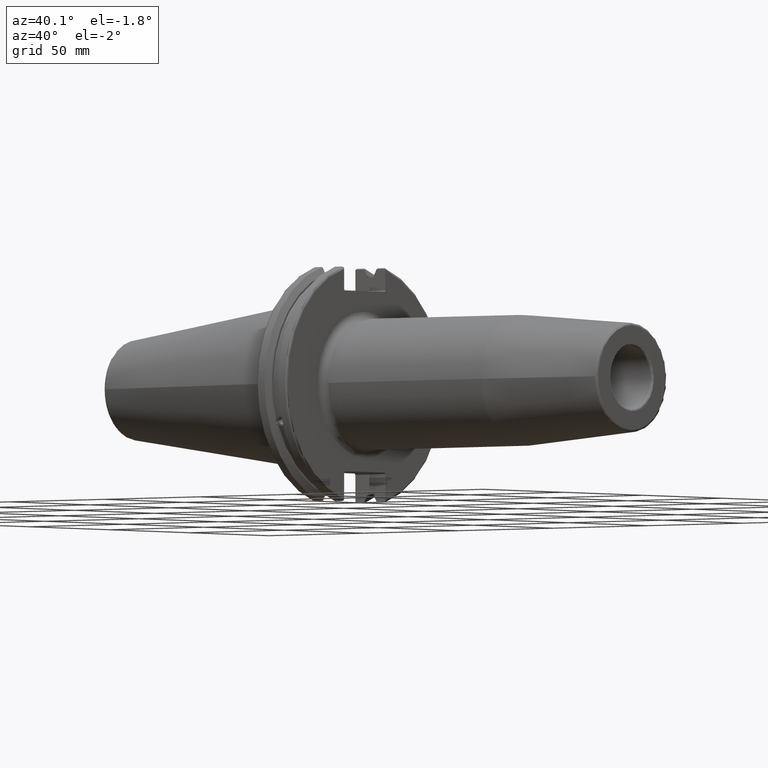
[diagram: clean part render]
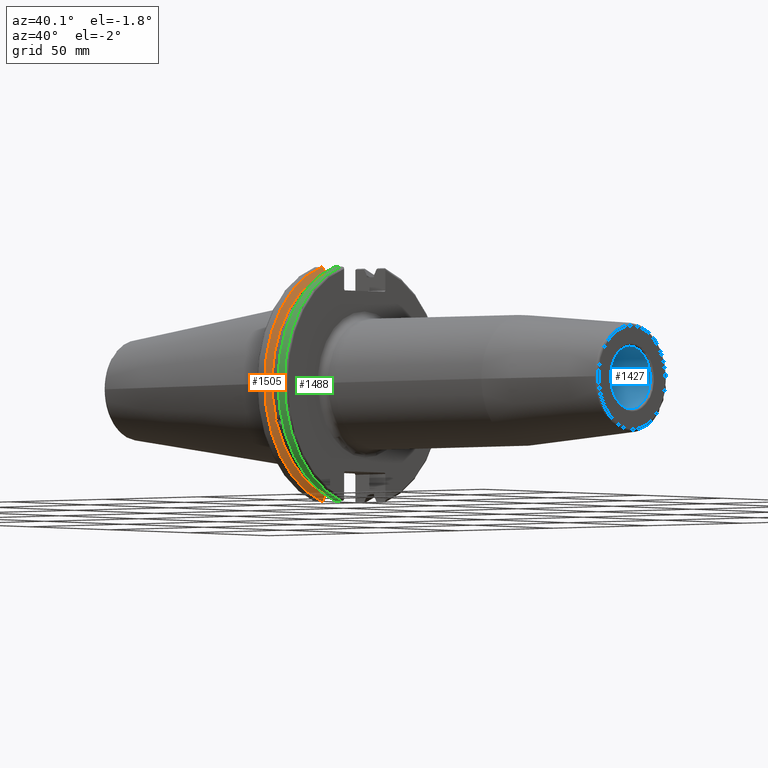
[diagram: same view with three faces highlighted in distinct colors, each labeled with its STEP entity id]
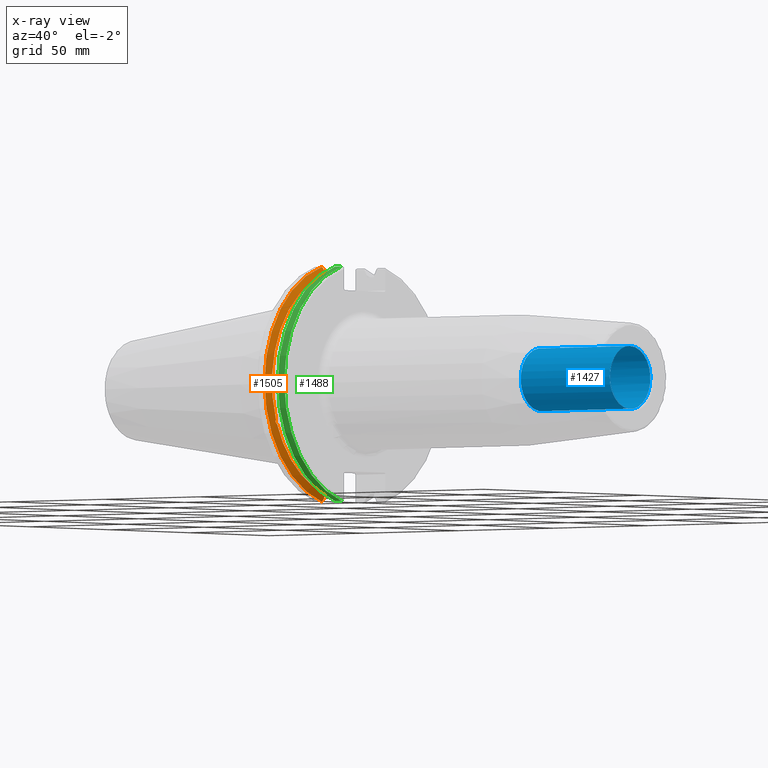
[diagram: x-ray of the same camera — body ghosted, the three highlighted faces saturated]
A machine part, auxiliary view with three faces highlighted in distinct colors.
The next image is the same camera in x-ray (body ghosted, the three faces saturated) — at least one of them is partly hidden behind the body in this view.
Their STEP definitions:

[orange] entity #1505 — the highlighted conical surface has half-angle 60 deg.
#25=(
BOUNDED_CURVE()
B_SPLINE_CURVE(2,(#2853,#2854,#2855),.UNSPECIFIED.,.F.,.F.)
B_SPLINE_CURVE_WITH_KNOTS((3,3),(0.,0.275823910674601),.UNSPECIFIED.)
CURVE()
GEOMETRIC_REPRESENTATION_ITEM()
RATIONAL_B_SPLINE_CURVE((1.,1.00038235573593,1.00012873636487))
REPRESENTATION_ITEM('')
);
#26=(
BOUNDED_CURVE()
B_SPLINE_CURVE(2,(#2865,#2866,#2867),.UNSPECIFIED.,.F.,.F.)
B_SPLINE_CURVE_WITH_KNOTS((3,3),(0.0558332664507492,0.331657177124507),
 .UNSPECIFIED.)
CURVE()
GEOMETRIC_REPRESENTATION_ITEM()
RATIONAL_B_SPLINE_CURVE((1.00012873636807,1.00038235574544,1.))
REPRESENTATION_ITEM('')
);
#27=(
BOUNDED_CURVE()
B_SPLINE_CURVE(2,(#2900,#2901,#2902),.UNSPECIFIED.,.F.,.F.)
B_SPLINE_CURVE_WITH_KNOTS((3,3),(0.,0.0648240472897372),.UNSPECIFIED.)
CURVE()
GEOMETRIC_REPRESENTATION_ITEM()
RATIONAL_B_SPLINE_CURVE((1.,1.00011477674836,1.00019140645948))
REPRESENTATION_ITEM('')
);
#28=(
BOUNDED_CURVE()
B_SPLINE_CURVE(2,(#2908,#2909,#2910),.UNSPECIFIED.,.F.,.F.)
B_SPLINE_CURVE_WITH_KNOTS((3,3),(0.325260944932348,0.390084992222201),
 .UNSPECIFIED.)
CURVE()
GEOMETRIC_REPRESENTATION_ITEM()
RATIONAL_B_SPLINE_CURVE((1.00019140645916,1.00011477674817,1.))
REPRESENTATION_ITEM('')
);
#43=B_SPLINE_CURVE_WITH_KNOTS('',3,(#2397,#2398,#2399,#2400,#2401,#2402,
#2403,#2404,#2405,#2406,#2407,#2408,#2409,#2410),.UNSPECIFIED.,.F.,.F.,
(4,2,2,2,2,2,4),(0.426712868358719,0.441644498666906,0.48031331322313,0.518982127779354,
0.557650942335578,0.596319756891801,0.611251387199988),.UNSPECIFIED.);
#82=CONICAL_SURFACE('',#1685,47.8172386482472,1.0471975511966);
#426=FACE_OUTER_BOUND('',#530,.T.);
#530=EDGE_LOOP('',(#1396,#1397,#1398,#1399,#1400,#1401,#1402,#1403));
#567=CIRCLE('',#1592,46.4219772964944);
#589=CIRCLE('',#1639,49.2125);
#605=CIRCLE('',#1686,46.4219772964944);
#652=VERTEX_POINT('',#2394);
#653=VERTEX_POINT('',#2396);
#670=VERTEX_POINT('',#2487);
#728=VERTEX_POINT('',#2850);
#729=VERTEX_POINT('',#2852);
#732=VERTEX_POINT('',#2864);
#736=VERTEX_POINT('',#2898);
#737=VERTEX_POINT('',#2904);
#813=EDGE_CURVE('',#653,#652,#43,.T.);
#836=EDGE_CURVE('',#653,#670,#567,.T.);
#914=EDGE_CURVE('',#729,#728,#25,.T.);
#920=EDGE_CURVE('',#732,#670,#26,.T.);
#928=EDGE_CURVE('',#736,#728,#27,.T.);
#930=EDGE_CURVE('',#736,#737,#589,.T.);
#931=EDGE_CURVE('',#732,#737,#28,.T.);
#973=EDGE_CURVE('',#729,#652,#605,.T.);
#1396=ORIENTED_EDGE('',*,*,#813,.T.);
#1397=ORIENTED_EDGE('',*,*,#973,.F.);
#1398=ORIENTED_EDGE('',*,*,#914,.T.);
#1399=ORIENTED_EDGE('',*,*,#928,.F.);
#1400=ORIENTED_EDGE('',*,*,#930,.T.);
#1401=ORIENTED_EDGE('',*,*,#931,.F.);
#1402=ORIENTED_EDGE('',*,*,#920,.T.);
#1403=ORIENTED_EDGE('',*,*,#836,.F.);
#1505=ADVANCED_FACE('',(#426),#82,.T.);
#1592=AXIS2_PLACEMENT_3D('',#2488,#1843,#1844);
#1639=AXIS2_PLACEMENT_3D('',#2906,#1977,#1978);
#1685=AXIS2_PLACEMENT_3D('',#3022,#2090,#2091);
#1686=AXIS2_PLACEMENT_3D('',#3023,#2092,#2093);
#1843=DIRECTION('center_axis',(1.,0.,0.));
#1844=DIRECTION('ref_axis',(0.,0.,-1.));
#1977=DIRECTION('center_axis',(1.,0.,0.));
#1978=DIRECTION('ref_axis',(0.,0.,-1.));
#2090=DIRECTION('center_axis',(-1.,0.,0.));
#2091=DIRECTION('ref_axis',(0.,-1.,-1.22464679914735E-16));
#2092=DIRECTION('center_axis',(1.,0.,0.));
#2093=DIRECTION('ref_axis',(0.,0.,-1.));
#2394=CARTESIAN_POINT('',(9.2191,-43.9096390749305,-15.0646464421033));
#2396=CARTESIAN_POINT('',(9.2191,-43.3201030900029,-16.684383248648));
#2397=CARTESIAN_POINT('Ctrl Pts',(9.21910000000001,-43.3201030900029,-16.6843832486479));
#2398=CARTESIAN_POINT('Ctrl Pts',(9.20211843903392,-43.3613106941341,-16.6592273018006));
#2399=CARTESIAN_POINT('Ctrl Pts',(9.18608675403322,-43.4012416983557,-16.6326763251437));
#2400=CARTESIAN_POINT('Ctrl Pts',(9.13238673845037,-43.5391037343221,-16.5325130832406));
#2401=CARTESIAN_POINT('Ctrl Pts',(9.09621610663556,-43.6406982153491,-16.441180795372));
#2402=CARTESIAN_POINT('Ctrl Pts',(9.04690868251975,-43.8110833825827,-16.2291323464527));
#2403=CARTESIAN_POINT('Ctrl Pts',(9.0341,-43.8794096049168,-16.10796730316));
#2404=CARTESIAN_POINT('Ctrl Pts',(9.0341,-43.9675796948952,-15.8657219718732));
#2405=CARTESIAN_POINT('Ctrl Pts',(9.04690868251975,-43.9931221605126,-15.7289849146254));
#2406=CARTESIAN_POINT('Ctrl Pts',(9.09621610663556,-43.9989016655819,-15.4570249042867));
#2407=CARTESIAN_POINT('Ctrl Pts',(9.13238673845037,-43.9797830409458,-15.3217566390708));
#2408=CARTESIAN_POINT('Ctrl Pts',(9.18608675403322,-43.9385582852181,-15.1564111356409));
#2409=CARTESIAN_POINT('Ctrl Pts',(9.20211843903392,-43.9250360001461,-15.1104047527575));
#2410=CARTESIAN_POINT('Ctrl Pts',(9.2191,-43.9096390749305,-15.0646464421033));
#2487=CARTESIAN_POINT('',(9.2191,-12.95,-44.5791147973604));
#2488=CARTESIAN_POINT('Origin',(9.2191,0.,0.));
#2850=CARTESIAN_POINT('',(7.88638960562424,-12.95,46.9780755322918));
#2852=CARTESIAN_POINT('',(9.2191,-12.95,44.5791147973604));
#2853=CARTESIAN_POINT('Ctrl Pts',(9.2191,-12.95,44.5791147973604));
#2854=CARTESIAN_POINT('Ctrl Pts',(8.57020449055857,-12.95,45.7494966802148));
#2855=CARTESIAN_POINT('Ctrl Pts',(7.88638960562424,-12.95,46.9780755322918));
#2864=CARTESIAN_POINT('',(7.88638960562425,-12.95,-46.9780755322918));
#2865=CARTESIAN_POINT('Ctrl Pts',(7.88638960562425,-12.95,-46.9780755322918));
#2866=CARTESIAN_POINT('Ctrl Pts',(8.57020449054166,-12.95,-45.7494966802452));
#2867=CARTESIAN_POINT('Ctrl Pts',(9.2191,-12.95,-44.5791147973604));
#2898=CARTESIAN_POINT('',(7.60799096595127,-13.4317035994433,47.3440544806494));
#2900=CARTESIAN_POINT('Ctrl Pts',(7.60799096595126,-13.4317035994433,47.3440544806494));
#2901=CARTESIAN_POINT('Ctrl Pts',(7.7482689666382,-13.1896660169966,47.1601640966265));
#2902=CARTESIAN_POINT('Ctrl Pts',(7.88638960562424,-12.95,46.9780755322918));
#2904=CARTESIAN_POINT('',(7.60799096595127,-13.4317035994433,-47.3440544806494));
#2906=CARTESIAN_POINT('Origin',(7.60799096595127,0.,0.));
#2908=CARTESIAN_POINT('Ctrl Pts',(7.88638960562425,-12.95,-46.9780755322918));
#2909=CARTESIAN_POINT('Ctrl Pts',(7.74826896663813,-13.1896660169967,-47.1601640966265));
#2910=CARTESIAN_POINT('Ctrl Pts',(7.60799096595127,-13.4317035994434,-47.3440544806494));
#3022=CARTESIAN_POINT('Origin',(8.41354548297563,0.,0.));
#3023=CARTESIAN_POINT('Origin',(9.2191,0.,0.));

[blue] entity #1427 — the highlighted cylindrical surface (bore or boss wall) has radius 12.7 mm, axis along (1, 0, 0).
#83=LINE('',#2118,#173);
#173=VECTOR('',#1710,12.7);
#263=CYLINDRICAL_SURFACE('',#1539,12.7);
#348=FACE_OUTER_BOUND('',#433,.T.);
#433=EDGE_LOOP('',(#983,#984,#985,#986,#987));
#534=CIRCLE('',#1533,12.7);
#535=CIRCLE('',#1534,12.7);
#539=CIRCLE('',#1540,12.7);
#608=VERTEX_POINT('',#2106);
#609=VERTEX_POINT('',#2107);
#612=VERTEX_POINT('',#2117);
#756=EDGE_CURVE('',#608,#609,#534,.T.);
#757=EDGE_CURVE('',#609,#608,#535,.T.);
#761=EDGE_CURVE('',#609,#612,#83,.T.);
#762=EDGE_CURVE('',#612,#612,#539,.T.);
#983=ORIENTED_EDGE('',*,*,#756,.F.);
#984=ORIENTED_EDGE('',*,*,#757,.F.);
#985=ORIENTED_EDGE('',*,*,#761,.T.);
#986=ORIENTED_EDGE('',*,*,#762,.F.);
#987=ORIENTED_EDGE('',*,*,#761,.F.);
#1427=ADVANCED_FACE('',(#348),#263,.F.);
#1533=AXIS2_PLACEMENT_3D('',#2108,#1696,#1697);
#1534=AXIS2_PLACEMENT_3D('',#2109,#1698,#1699);
#1539=AXIS2_PLACEMENT_3D('',#2116,#1708,#1709);
#1540=AXIS2_PLACEMENT_3D('',#2119,#1711,#1712);
#1696=DIRECTION('center_axis',(-1.,0.,0.));
#1697=DIRECTION('ref_axis',(0.,-1.,1.83697019872103E-16));
#1698=DIRECTION('center_axis',(-1.,0.,0.));
#1699=DIRECTION('ref_axis',(0.,-1.,1.83697019872103E-16));
#1708=DIRECTION('center_axis',(1.,0.,0.));
#1709=DIRECTION('ref_axis',(0.,1.,0.));
#1710=DIRECTION('',(-1.,0.,0.));
#1711=DIRECTION('center_axis',(1.,0.,0.));
#1712=DIRECTION('ref_axis',(0.,0.,-1.));
#2106=CARTESIAN_POINT('',(159.,-1.55530143491714E-15,12.7));
#2107=CARTESIAN_POINT('',(159.,-12.7,-1.55530143491714E-15));
#2108=CARTESIAN_POINT('Origin',(159.,0.,0.));
#2109=CARTESIAN_POINT('Origin',(159.,0.,0.));
#2116=CARTESIAN_POINT('Origin',(136.,0.,0.));
#2117=CARTESIAN_POINT('',(112.,-12.7,-1.55530143491714E-15));
#2118=CARTESIAN_POINT('',(136.,-12.7,-1.55530143491714E-15));
#2119=CARTESIAN_POINT('Origin',(112.,0.,0.));

[green] entity #1488 — the highlighted cylindrical surface (partial cylindrical patch) has radius 49.2125 mm, axis along (1, 0, 0).
#164=LINE('',#2979,#254);
#165=LINE('',#2981,#255);
#254=VECTOR('',#2031,10.);
#255=VECTOR('',#2034,10.);
#282=CYLINDRICAL_SURFACE('',#1660,49.2125);
#409=FACE_OUTER_BOUND('',#511,.T.);
#511=EDGE_LOOP('',(#1325,#1326,#1327,#1328));
#563=CIRCLE('',#1585,49.2125);
#587=CIRCLE('',#1632,49.2125);
#664=VERTEX_POINT('',#2463);
#665=VERTEX_POINT('',#2467);
#725=VERTEX_POINT('',#2822);
#726=VERTEX_POINT('',#2831);
#828=EDGE_CURVE('',#665,#664,#563,.T.);
#909=EDGE_CURVE('',#725,#726,#587,.T.);
#955=EDGE_CURVE('',#726,#664,#164,.T.);
#956=EDGE_CURVE('',#665,#725,#165,.T.);
#1325=ORIENTED_EDGE('',*,*,#909,.F.);
#1326=ORIENTED_EDGE('',*,*,#956,.F.);
#1327=ORIENTED_EDGE('',*,*,#828,.T.);
#1328=ORIENTED_EDGE('',*,*,#955,.F.);
#1488=ADVANCED_FACE('',(#409),#282,.T.);
#1585=AXIS2_PLACEMENT_3D('',#2468,#1827,#1828);
#1632=AXIS2_PLACEMENT_3D('',#2832,#1952,#1953);
#1660=AXIS2_PLACEMENT_3D('',#2980,#2032,#2033);
#1827=DIRECTION('center_axis',(1.,0.,0.));
#1828=DIRECTION('ref_axis',(0.,0.,-1.));
#1952=DIRECTION('center_axis',(1.,0.,0.));
#1953=DIRECTION('ref_axis',(0.,-1.,1.60812264967664E-16));
#2031=DIRECTION('',(-1.,0.,0.));
#2032=DIRECTION('center_axis',(1.,0.,0.));
#2033=DIRECTION('ref_axis',(0.,-1.,1.22464679914735E-16));
#2034=DIRECTION('',(1.,0.,0.));
#2463=CARTESIAN_POINT('',(14.6602090340487,-13.4317035994433,-47.3440544806494));
#2467=CARTESIAN_POINT('',(14.6602090340487,-13.4317035994433,47.3440544806494));
#2468=CARTESIAN_POINT('Origin',(14.6602090340487,0.,0.));
#2822=CARTESIAN_POINT('',(18.05,-13.4317035994433,47.3440544806494));
#2831=CARTESIAN_POINT('',(18.05,-13.4317035994433,-47.3440544806494));
#2832=CARTESIAN_POINT('Origin',(18.05,0.,0.));
#2979=CARTESIAN_POINT('',(16.8551045170244,-13.4317035994433,-47.3440544806494));
#2980=CARTESIAN_POINT('Origin',(16.8551045170244,0.,0.));
#2981=CARTESIAN_POINT('',(16.8551045170244,-13.4317035994433,47.3440544806494));